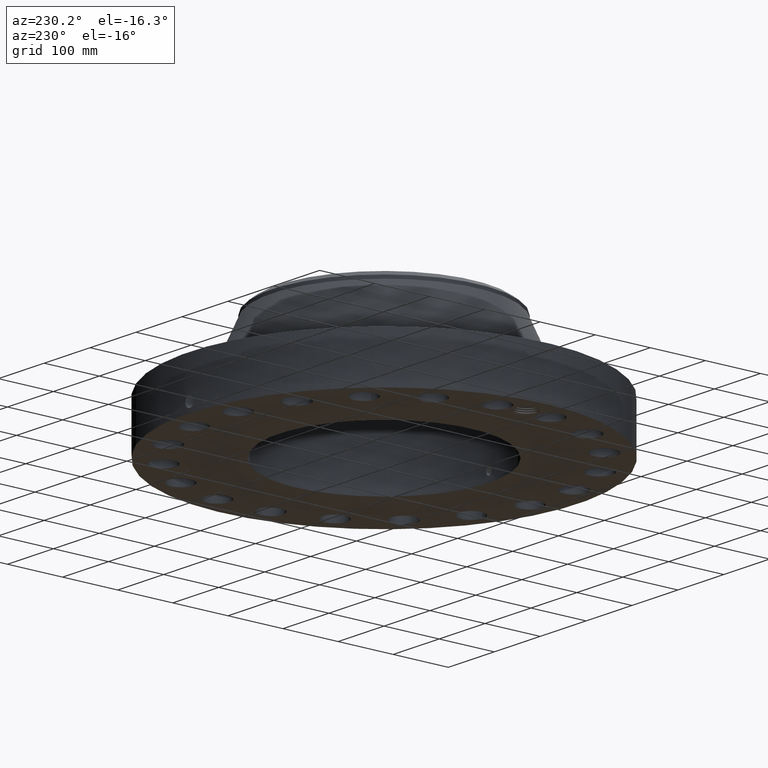
[diagram: clean part render]
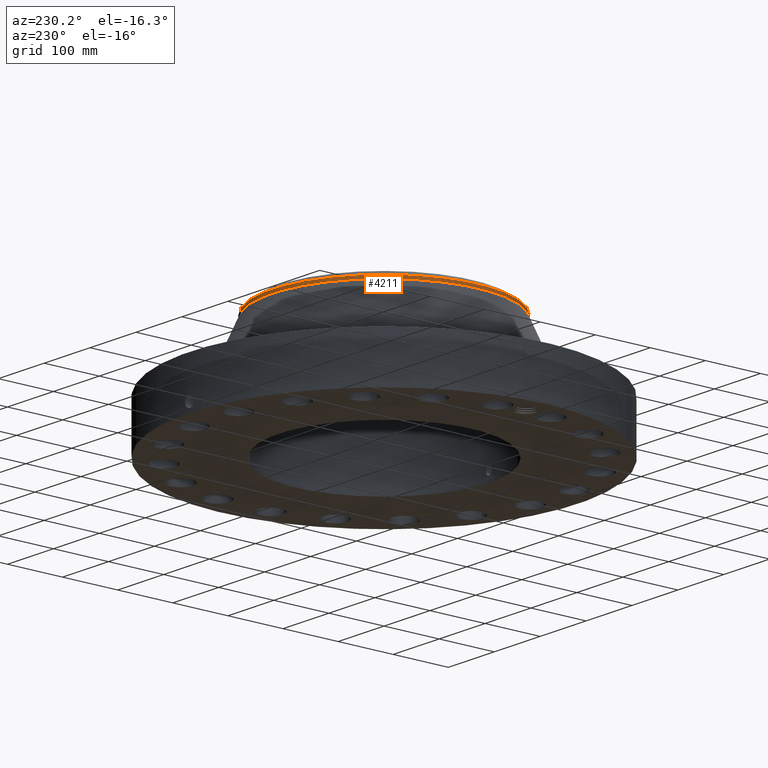
[diagram: same view with one face highlighted and labeled with its STEP entity id]
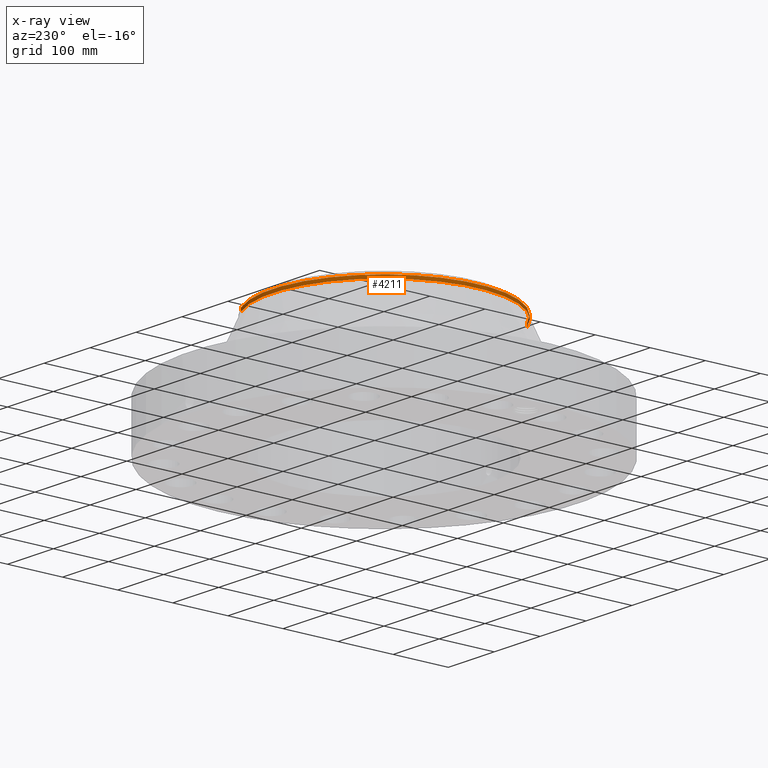
[diagram: x-ray of the same camera — body ghosted, the highlighted face saturated]
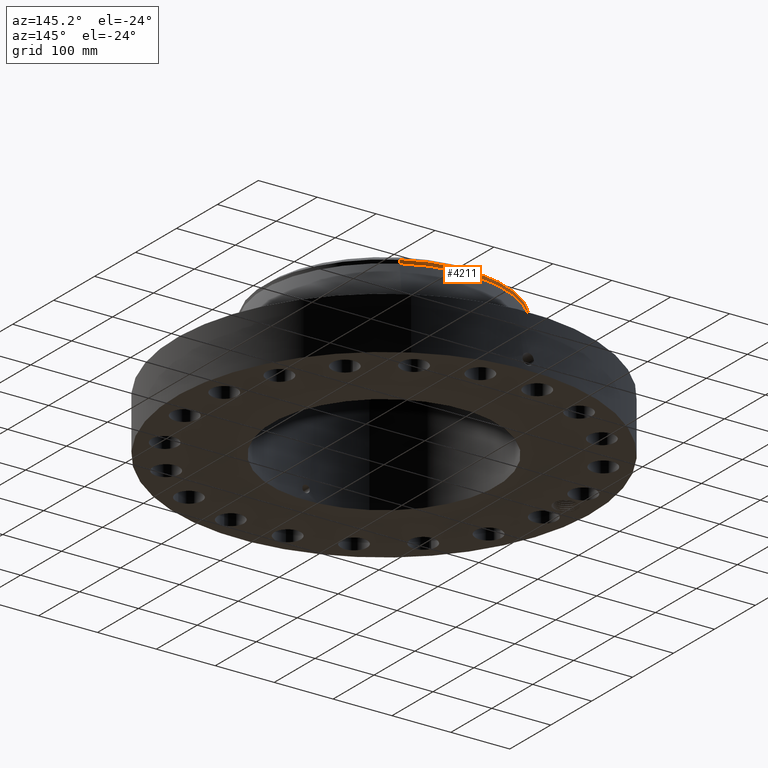
[diagram: same view with one face highlighted and labeled with its STEP entity id]
A machine part, auxiliary view. The second image highlights one B-rep face of the part: STEP entity #4211.
The next image is the same camera in x-ray: the body ghosted, the highlighted face saturated — about 0% of this face is hidden behind the body in this view.
A second angle (auxiliary view) of the same face is appended — the face is thin or edge-on in the first view.
In plain terms, the highlighted cylindrical surface (partial cylindrical patch) has radius 203.2 mm, axis along (0, 0, -1).
Its self-contained STEP definition (entity closure, byte-faithful):
#3387=AXIS2_PLACEMENT_3D('Circle Axis2P3D',#3385,#3386,$) ;
#3826=AXIS2_PLACEMENT_3D('Circle Axis2P3D',#3824,#3825,$) ;
#3853=AXIS2_PLACEMENT_3D('Circle Axis2P3D',#3851,#3852,$) ;
#4184=AXIS2_PLACEMENT_3D('Cylinder Axis2P3D',#4181,#4182,#4183) ;
#3363=CARTESIAN_POINT('Vertex',(3.83540430885,7.02066049515,8.19053548148)) ;
#3370=CARTESIAN_POINT('Vertex',(-3.83540430885,-7.02066049515,8.19053548148)) ;
#3385=CARTESIAN_POINT('Axis2P3D Location',(0.,0.,8.19053548148)) ;
#3821=CARTESIAN_POINT('Vertex',(-3.83540430885,7.02066049515,8.42675595392)) ;
#3824=CARTESIAN_POINT('Axis2P3D Location',(0.,0.,8.42675595392)) ;
#3828=CARTESIAN_POINT('Vertex',(-3.83540430885,-7.02066049515,8.42675595392)) ;
#3848=CARTESIAN_POINT('Vertex',(3.83540430885,7.02066049515,8.42675595392)) ;
#3851=CARTESIAN_POINT('Axis2P3D Location',(0.,0.,8.42675595392)) ;
#4181=CARTESIAN_POINT('Axis2P3D Location',(0.,0.,4.50000000002)) ;
#4186=CARTESIAN_POINT('Line Origine',(-3.83540430885,-7.02066049515,8.3086457177)) ;
#4191=CARTESIAN_POINT('Line Origine',(3.83540430885,7.02066049515,8.3086457177)) ;
#3386=DIRECTION('Axis2P3D Direction',(0.,0.,-0.0393700787402)) ;
#3825=DIRECTION('Axis2P3D Direction',(0.,0.,-0.0393700787402)) ;
#3852=DIRECTION('Axis2P3D Direction',(0.,0.,-0.0393700787402)) ;
#4182=DIRECTION('Axis2P3D Direction',(0.,0.,-0.0393700787402)) ;
#4183=DIRECTION('Axis2P3D XDirection',(-0.0188750212049,-0.0345504945626,0.)) ;
#4187=DIRECTION('Vector Direction',(0.,0.,-0.0393700787402)) ;
#4192=DIRECTION('Vector Direction',(0.,0.,-0.0393700787402)) ;
#4188=VECTOR('Line Direction',#4187,0.0393700787402) ;
#4193=VECTOR('Line Direction',#4192,0.0393700787402) ;
#4205=ORIENTED_EDGE('',*,*,#4195,.F.) ;
#4206=ORIENTED_EDGE('',*,*,#3389,.F.) ;
#4207=ORIENTED_EDGE('',*,*,#4190,.T.) ;
#4208=ORIENTED_EDGE('',*,*,#3830,.F.) ;
#4209=ORIENTED_EDGE('',*,*,#3855,.T.) ;
#4211=ADVANCED_FACE('PartBody',(#4210),#4185,.T.) ;
#3388=CIRCLE('generated circle',#3387,8.00000000003) ;
#3827=CIRCLE('generated circle',#3826,8.00000000003) ;
#3854=CIRCLE('generated circle',#3853,8.00000000003) ;
#4185=CYLINDRICAL_SURFACE('generated cylinder',#4184,8.00000000003) ;
#3389=EDGE_CURVE('',#3371,#3364,#3388,.T.) ;
#3830=EDGE_CURVE('',#3822,#3829,#3827,.F.) ;
#3855=EDGE_CURVE('',#3822,#3849,#3854,.T.) ;
#4190=EDGE_CURVE('',#3371,#3829,#4189,.F.) ;
#4195=EDGE_CURVE('',#3364,#3849,#4194,.F.) ;
#4204=EDGE_LOOP('',(#4205,#4206,#4207,#4208,#4209)) ;
#4210=FACE_OUTER_BOUND('',#4204,.T.) ;
#4189=LINE('Line',#4186,#4188) ;
#4194=LINE('Line',#4191,#4193) ;
#3364=VERTEX_POINT('',#3363) ;
#3371=VERTEX_POINT('',#3370) ;
#3822=VERTEX_POINT('',#3821) ;
#3829=VERTEX_POINT('',#3828) ;
#3849=VERTEX_POINT('',#3848) ;